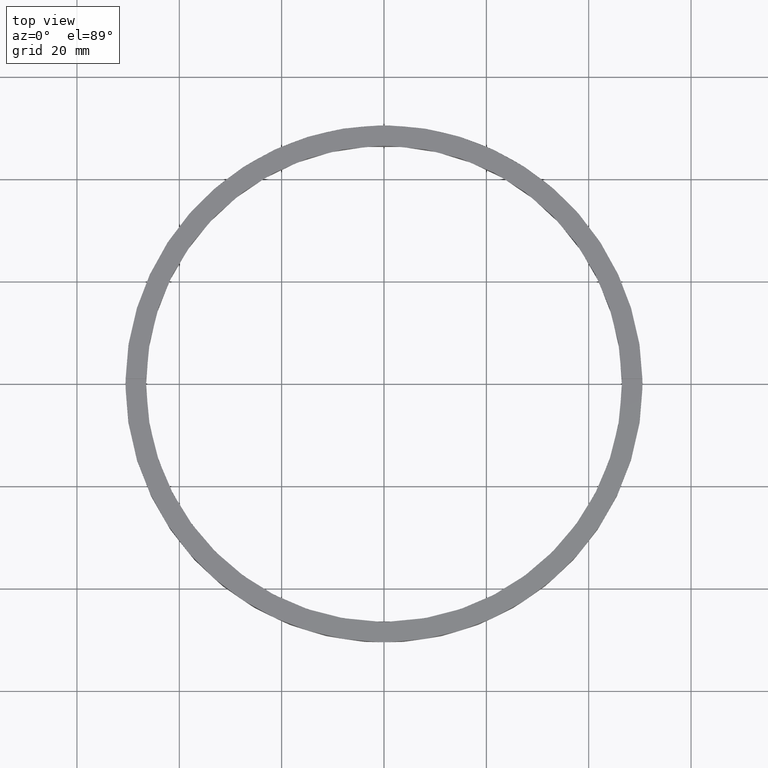
[diagram: clean part render]
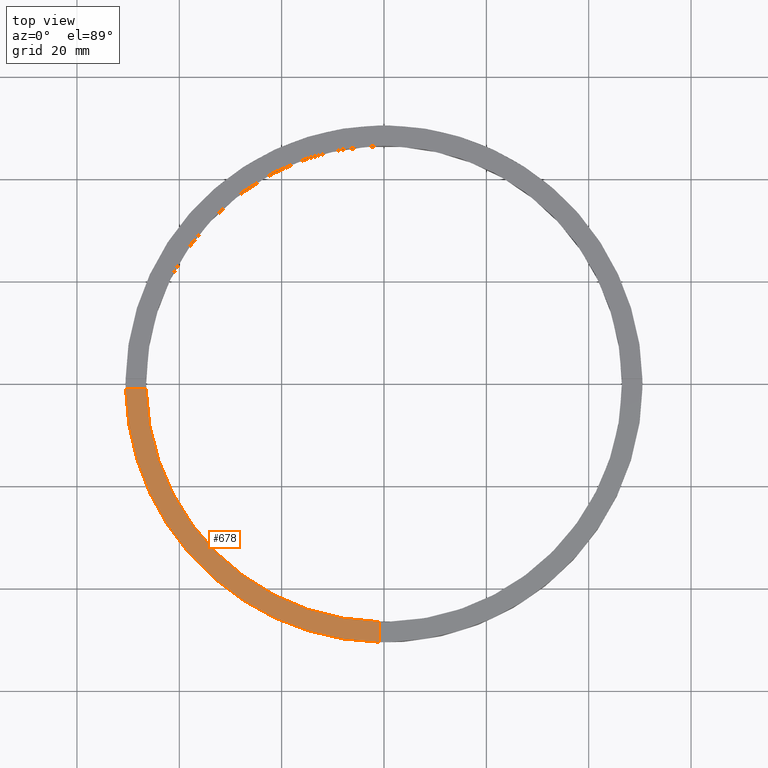
[diagram: same view with one face highlighted and labeled with its STEP entity id]
A machine part, top view. The second image highlights one B-rep face of the part: STEP entity #678.
In plain terms, the highlighted planar face has unit normal (0, 0, 1).
Its self-contained STEP definition (entity closure, byte-faithful):
#5 = CARTESIAN_POINT ( 'NONE',  ( -50.49009803912050387, -1.000000000000031752, 5.000000000000000000 ) ) ;
#23 = DIRECTION ( 'NONE',  ( 1.000000000000000000, 1.951563910473907735E-16, -0.000000000000000000 ) ) ;
#34 = CARTESIAN_POINT ( 'NONE',  ( -40.50000000000019185, -1.000000000000029754, 5.000000000000000000 ) ) ;
#44 = DIRECTION ( 'NONE',  ( 1.000000000000000000, 0.000000000000000000, -0.000000000000000000 ) ) ;
#46 = AXIS2_PLACEMENT_3D ( 'NONE', #50, #595, #64 ) ;
#50 = CARTESIAN_POINT ( 'NONE',  ( 0.000000000000000000, 0.000000000000000000, 5.000000000000000000 ) ) ;
#64 = DIRECTION ( 'NONE',  ( 1.000000000000000000, 0.000000000000000000, 0.000000000000000000 ) ) ;
#88 = VERTEX_POINT ( 'NONE', #529 ) ;
#92 = VERTEX_POINT ( 'NONE', #532 ) ;
#102 = ORIENTED_EDGE ( 'NONE', *, *, #661, .F. ) ;
#112 = CARTESIAN_POINT ( 'NONE',  ( 0.000000000000000000, 0.000000000000000000, 5.000000000000000000 ) ) ;
#170 = CIRCLE ( 'NONE', #46, 50.50000000000000000 ) ;
#244 = AXIS2_PLACEMENT_3D ( 'NONE', #112, #258, #714 ) ;
#251 = LINE ( 'NONE', #34, #766 ) ;
#258 = DIRECTION ( 'NONE',  ( 0.000000000000000000, 0.000000000000000000, 1.000000000000000000 ) ) ;
#273 = AXIS2_PLACEMENT_3D ( 'NONE', #781, #335, #44 ) ;
#297 = PLANE ( 'NONE',  #273 ) ;
#334 = ORIENTED_EDGE ( 'NONE', *, *, #742, .T. ) ;
#335 = DIRECTION ( 'NONE',  ( 0.000000000000000000, 0.000000000000000000, 1.000000000000000000 ) ) ;
#353 = EDGE_LOOP ( 'NONE', ( #582, #102, #390, #334 ) ) ;
#366 = EDGE_CURVE ( 'NONE', #92, #625, #466, .T. ) ;
#390 = ORIENTED_EDGE ( 'NONE', *, *, #571, .F. ) ;
#463 = VECTOR ( 'NONE', #747, 1000.000000000000000 ) ;
#466 = LINE ( 'NONE', #512, #463 ) ;
#507 = CIRCLE ( 'NONE', #244, 46.50000000000000000 ) ;
#512 = CARTESIAN_POINT ( 'NONE',  ( -1.000000000000157874, -40.50000000000018474, 5.000000000000000000 ) ) ;
#529 = CARTESIAN_POINT ( 'NONE',  ( -46.48924606831132422, -1.000000000000031086, 5.000000000000000000 ) ) ;
#532 = CARTESIAN_POINT ( 'NONE',  ( -1.000000000000156986, -46.48924606831132422, 5.000000000000000000 ) ) ;
#563 = CARTESIAN_POINT ( 'NONE',  ( -1.000000000000156541, -50.49009803912050387, 5.000000000000000000 ) ) ;
#571 = EDGE_CURVE ( 'NONE', #711, #88, #251, .T. ) ;
#582 = ORIENTED_EDGE ( 'NONE', *, *, #366, .F. ) ;
#595 = DIRECTION ( 'NONE',  ( 0.000000000000000000, 0.000000000000000000, 1.000000000000000000 ) ) ;
#625 = VERTEX_POINT ( 'NONE', #563 ) ;
#661 = EDGE_CURVE ( 'NONE', #88, #92, #507, .T. ) ;
#678 = ADVANCED_FACE ( 'NONE', ( #768 ), #297, .T. ) ;
#711 = VERTEX_POINT ( 'NONE', #5 ) ;
#714 = DIRECTION ( 'NONE',  ( 1.000000000000000000, 0.000000000000000000, 0.000000000000000000 ) ) ;
#742 = EDGE_CURVE ( 'NONE', #711, #625, #170, .T. ) ;
#747 = DIRECTION ( 'NONE',  ( 1.301042606982605074E-16, -1.000000000000000000, 0.000000000000000000 ) ) ;
#766 = VECTOR ( 'NONE', #23, 1000.000000000000000 ) ;
#768 = FACE_OUTER_BOUND ( 'NONE', #353, .T. ) ;
#781 = CARTESIAN_POINT ( 'NONE',  ( 0.000000000000000000, 0.000000000000000000, 5.000000000000000000 ) ) ;